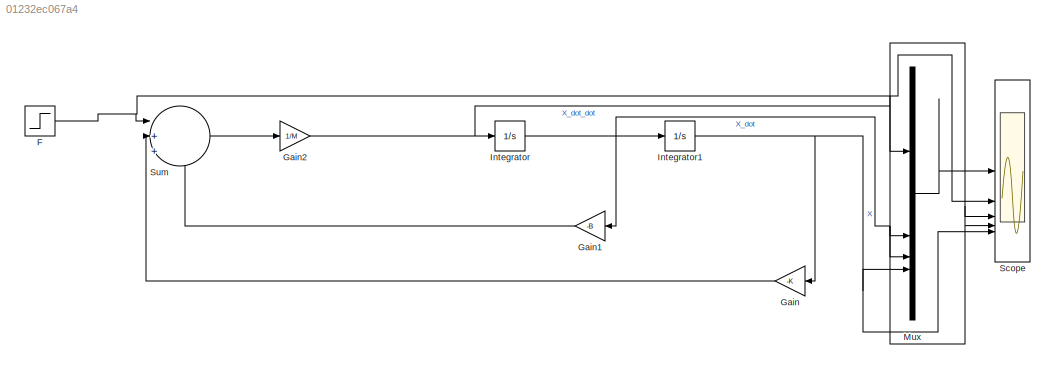
MODEL slx_01232ec067a4
KIND model
CONFIG AbsTol = auto
CONFIG EnableMultiTasking = off
CONFIG FixedStep = auto
CONFIG MaxStep = 0.01
CONFIG MinStep = auto
CONFIG RelTol = 1e-3
CONFIG SampleTimeConstraint = Unconstrained
CONFIG SolverName = VariableStepAuto
CONFIG StartTime = 0.0
CONFIG StopTime = 100.0
BLOCK [Step] F
  After = F
  SampleTime = 0
BLOCK [Gain] Gain
  Gain = -K
BLOCK [Gain] Gain1
  Gain = -B
BLOCK [Gain] Gain2
  Gain = 1/M
BLOCK [Integrator] Integrator
BLOCK [Integrator] Integrator1
BLOCK [Mux] Mux
  DisplayOption = bar
BLOCK [Scope] Scope
  Floating = off
  NumInputPorts = 5
  ScopeSpecificationString = Simulink.scopes.TimeScopeBlockCfg('CurrentConfiguration', extmgr.ConfigurationSet(extmgr.Configuration('Core','General UI',true,'DisplayFullSourceName',true),extmgr.Configuration('Core','Source UI',true),extmgr.Configuration('Sources','WiredSimulink',true),extmgr.Configuration('Visuals','Time Domain',true,'TimeAxisLabels','All','SerializedDisplays',{struct('MinYLimReal','-0.12611','MaxYLimReal','1...<+5344ch>
BLOCK [Sum] Sum
  Inputs = |+++
NET F:1 -> Mux:1, Scope:2, Sum:1
LINE Gain1:1 -> Sum:3
NET Gain2:1 -> Integrator:1, Mux:2, Scope:3
LINE Gain:1 -> Sum:2
NET Integrator1:1 -> Gain:1, Mux:4, Scope:5
NET Integrator:1 -> Gain1:1, Integrator1:1, Mux:3, Scope:4
LINE Mux:1 -> Scope:1
LINE Sum:1 -> Gain2:1
note: NET lines group one-source signal fan-out (src -> all destinations, sorted); 1:1 wires keep LINE
